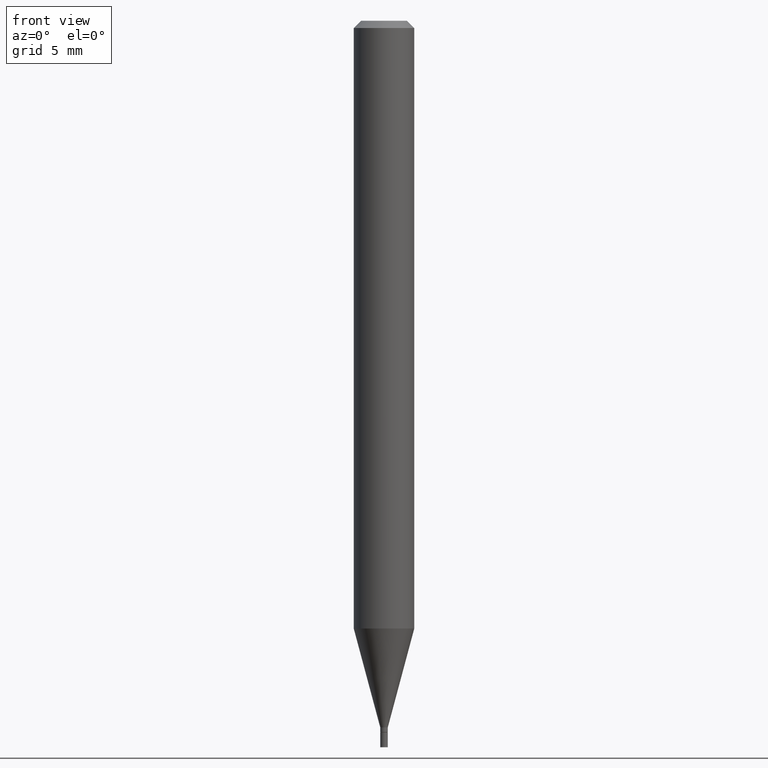
[diagram: clean part render]
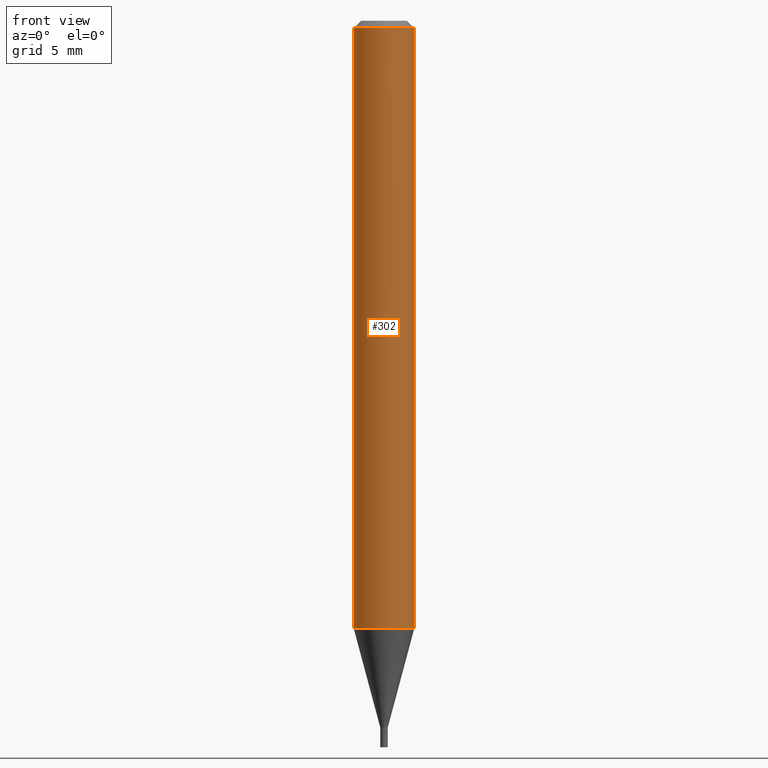
[diagram: same view with one face highlighted and labeled with its STEP entity id]
A machine part, front view. The second image highlights one B-rep face of the part: STEP entity #302.
In plain terms, the highlighted cylindrical surface (edge-blend (fillet) strip) has radius 1.5875 mm, axis along (-0, 0, 1).
Its self-contained STEP definition (entity closure, byte-faithful):
#21 = VERTEX_POINT ( 'NONE', #462 ) ;
#25 = AXIS2_PLACEMENT_3D ( 'NONE', #227, #363, #45 ) ;
#45 = DIRECTION ( 'NONE',  ( 1.000000000000000000, -6.982962677686261189E-15, 0.000000000000000000 ) ) ;
#46 = DIRECTION ( 'NONE',  ( 1.000000000000000000, -6.982962677686267499E-15, 0.000000000000000000 ) ) ;
#51 = VERTEX_POINT ( 'NONE', #75 ) ;
#54 = EDGE_CURVE ( 'NONE', #385, #21, #117, .T. ) ;
#75 = CARTESIAN_POINT ( 'NONE',  ( -0.06250000000000001388, -1.772751486608234942E-15, -0.01499999999999999944 ) ) ;
#78 = CARTESIAN_POINT ( 'NONE',  ( -0.06250000000000008327, 4.440892098500632078E-16, -3.074334431409319967E-30 ) ) ;
#93 = EDGE_CURVE ( 'NONE', #385, #51, #285, .T. ) ;
#117 = CIRCLE ( 'NONE', #25, 0.06250000000000015266 ) ;
#127 = LINE ( 'NONE', #234, #401 ) ;
#144 = CIRCLE ( 'NONE', #301, 0.06250000000000001388 ) ;
#173 = ORIENTED_EDGE ( 'NONE', *, *, #93, .F. ) ;
#201 = ORIENTED_EDGE ( 'NONE', *, *, #54, .T. ) ;
#227 = CARTESIAN_POINT ( 'NONE',  ( 3.068713211558588799E-29, -4.381309172833951587E-15, -1.254856820825981378 ) ) ;
#232 = CARTESIAN_POINT ( 'NONE',  ( 3.668203209277705088E-31, -5.237222008264718399E-17, -0.01499999999999999944 ) ) ;
#234 = CARTESIAN_POINT ( 'NONE',  ( 0.06250000000000008327, -4.364351673553922611E-16, 3.047610484872464074E-30 ) ) ;
#237 = ORIENTED_EDGE ( 'NONE', *, *, #318, .F. ) ;
#251 = CYLINDRICAL_SURFACE ( 'NONE', #338, 0.06250000000000008327 ) ;
#256 = DIRECTION ( 'NONE',  ( -2.445468806185136597E-29, 3.491481338843145583E-15, 1.000000000000000000 ) ) ;
#264 = DIRECTION ( 'NONE',  ( -2.445468806185136877E-29, 3.491481338843145188E-15, 1.000000000000000000 ) ) ;
#285 = LINE ( 'NONE', #78, #287 ) ;
#287 = VECTOR ( 'NONE', #402, 39.37007874015748143 ) ;
#290 = CARTESIAN_POINT ( 'NONE',  ( 0.000000000000000000, 0.000000000000000000, 0.000000000000000000 ) ) ;
#301 = AXIS2_PLACEMENT_3D ( 'NONE', #232, #303, #46 ) ;
#302 = ADVANCED_FACE ( 'NONE', ( #316 ), #251, .T. ) ;
#303 = DIRECTION ( 'NONE',  ( -2.445468806185136597E-29, 3.491481338843145583E-15, 1.000000000000000000 ) ) ;
#308 = EDGE_CURVE ( 'NONE', #21, #390, #127, .T. ) ;
#312 = EDGE_LOOP ( 'NONE', ( #173, #201, #379, #237 ) ) ;
#316 = FACE_OUTER_BOUND ( 'NONE', #312, .T. ) ;
#318 = EDGE_CURVE ( 'NONE', #51, #390, #144, .T. ) ;
#338 = AXIS2_PLACEMENT_3D ( 'NONE', #290, #256, #457 ) ;
#363 = DIRECTION ( 'NONE',  ( -2.445468806185136597E-29, 3.491481338843145583E-15, 1.000000000000000000 ) ) ;
#369 = CARTESIAN_POINT ( 'NONE',  ( 0.06250000000000001388, -4.888073874380389458E-16, -0.01499999999999999944 ) ) ;
#374 = CARTESIAN_POINT ( 'NONE',  ( -0.06250000000000015266, -3.937219962983887393E-15, -1.254856820825981378 ) ) ;
#379 = ORIENTED_EDGE ( 'NONE', *, *, #308, .T. ) ;
#385 = VERTEX_POINT ( 'NONE', #374 ) ;
#390 = VERTEX_POINT ( 'NONE', #369 ) ;
#401 = VECTOR ( 'NONE', #264, 39.37007874015748143 ) ;
#402 = DIRECTION ( 'NONE',  ( -2.445468806185136877E-29, 3.491481338843145188E-15, 1.000000000000000000 ) ) ;
#457 = DIRECTION ( 'NONE',  ( 1.000000000000000000, -6.982962677686266711E-15, 4.876176775795935793E-29 ) ) ;
#462 = CARTESIAN_POINT ( 'NONE',  ( 0.06250000000000015266, -4.817744340189344045E-15, -1.254856820825981378 ) ) ;